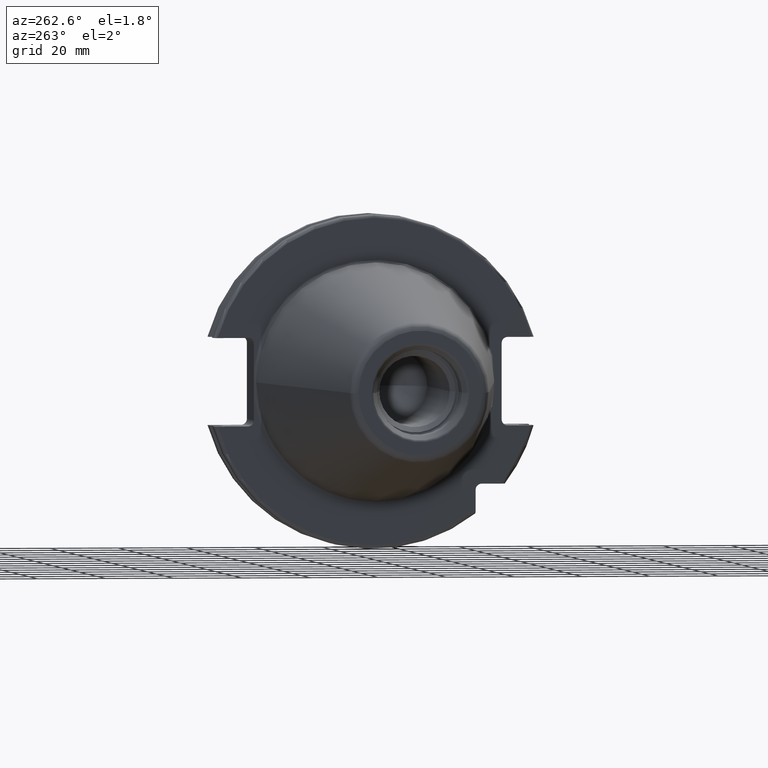
[diagram: clean part render]
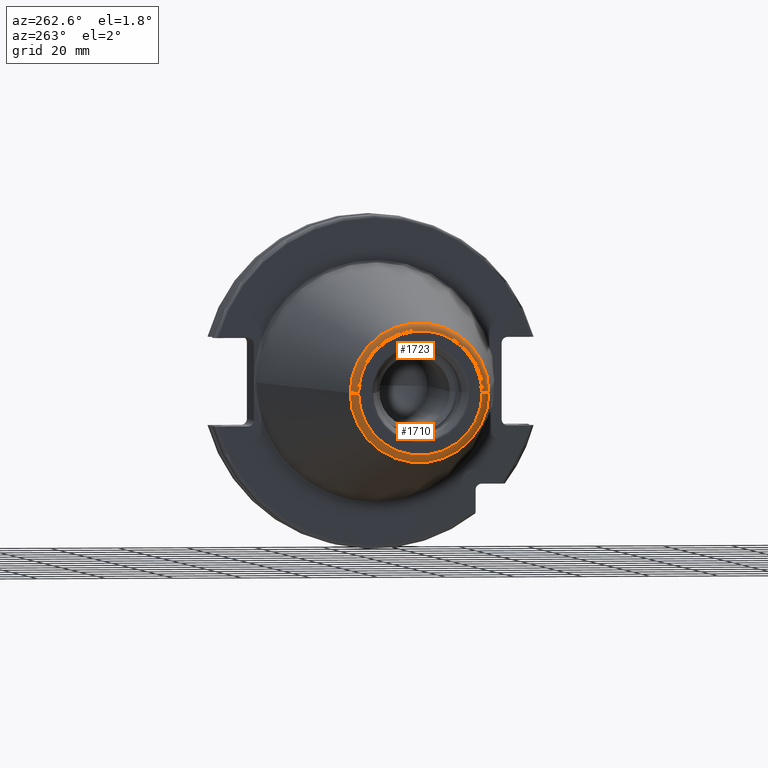
[diagram: same view with one multi-face feature highlighted, each face labeled with its STEP entity id]
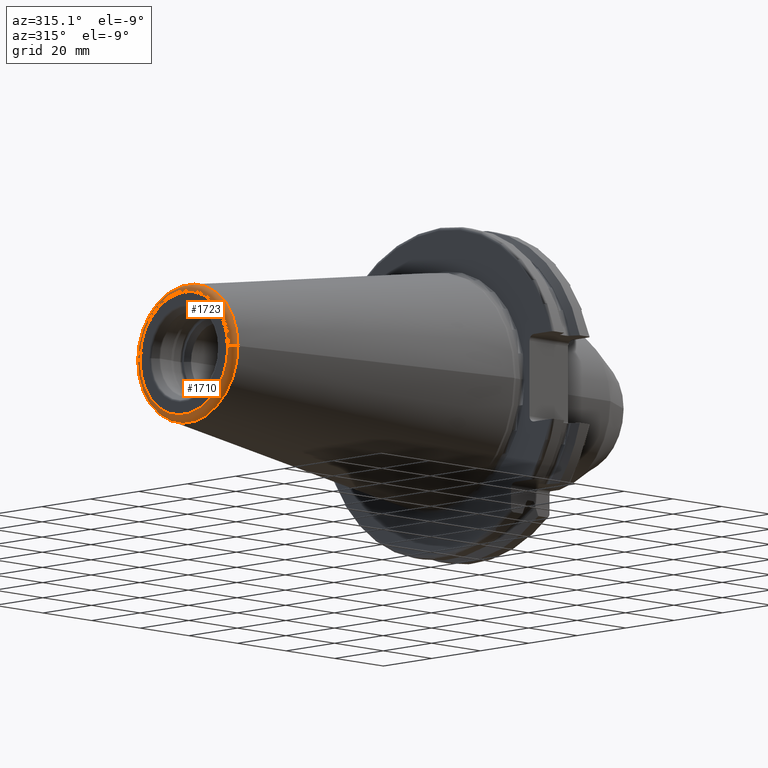
[diagram: same view with one multi-face feature highlighted, each face labeled with its STEP entity id]
A machine part, auxiliary view. The highlighted faces form ONE feature: a constant-radius fillet chain: 2 tangent blend faces with common blend radius 2.25 mm. The faces share edges in the B-rep.
A second angle (auxiliary view) of the same feature is appended — it is thin or edge-on in the first view.
Their STEP definitions:
[1] entity #1710 (Torus):
#2=CARTESIAN_POINT('',(-1.016E2,0.E0,0.E0));
#3=DIRECTION('',(-1.E0,0.E0,0.E0));
#4=DIRECTION('',(0.E0,1.E0,0.E0));
#5=AXIS2_PLACEMENT_3D('',#2,#3,#4);
#22=CARTESIAN_POINT('',(-9.935E1,1.816144700117E1,0.E0));
#23=DIRECTION('',(0.E0,0.E0,1.E0));
#24=DIRECTION('',(-1.443186691705E-1,9.895312636440E-1,0.E0));
#25=AXIS2_PLACEMENT_3D('',#22,#23,#24);
#27=CARTESIAN_POINT('',(-9.935E1,-1.816144700117E1,0.E0));
#28=DIRECTION('',(0.E0,0.E0,-1.E0));
#29=DIRECTION('',(-1.443186691705E-1,-9.895312636440E-1,0.E0));
#30=AXIS2_PLACEMENT_3D('',#27,#28,#29);
#32=CARTESIAN_POINT('',(-9.967471700563E1,0.E0,0.E0));
#33=DIRECTION('',(-1.E0,0.E0,0.E0));
#34=DIRECTION('',(0.E0,1.E0,0.E0));
#35=AXIS2_PLACEMENT_3D('',#32,#33,#34);
#1406=CARTESIAN_POINT('',(-9.967471700563E1,2.038789234437E1,0.E0));
#1407=CARTESIAN_POINT('',(-1.016E2,1.816144700117E1,0.E0));
#1408=VERTEX_POINT('',#1406);
#1409=VERTEX_POINT('',#1407);
#1410=CARTESIAN_POINT('',(-9.967471700563E1,-2.038789234437E1,0.E0));
#1411=CARTESIAN_POINT('',(-1.016E2,-1.816144700117E1,0.E0));
#1412=VERTEX_POINT('',#1410);
#1413=VERTEX_POINT('',#1411);
#1696=CARTESIAN_POINT('',(-9.935E1,0.E0,0.E0));
#1697=DIRECTION('',(1.E0,0.E0,0.E0));
#1698=DIRECTION('',(0.E0,-1.E0,0.E0));
#1699=AXIS2_PLACEMENT_3D('',#1696,#1697,#1698);
#1700=TOROIDAL_SURFACE('',#1699,1.816144700117E1,2.25E0);
#1702=ORIENTED_EDGE('',*,*,#1701,.T.);
#1703=ORIENTED_EDGE('',*,*,#1683,.T.);
#1705=ORIENTED_EDGE('',*,*,#1704,.F.);
#1707=ORIENTED_EDGE('',*,*,#1706,.F.);
#1708=EDGE_LOOP('',(#1702,#1703,#1705,#1707));
#1709=FACE_OUTER_BOUND('',#1708,.F.);
#1710=ADVANCED_FACE('',(#1709),#1700,.T.);
#6=CIRCLE('',#5,1.816144700117E1);
#26=CIRCLE('',#25,2.25E0);
#31=CIRCLE('',#30,2.25E0);
#36=CIRCLE('',#35,2.038789234437E1);
#1683=EDGE_CURVE('',#1409,#1413,#6,.T.);
#1701=EDGE_CURVE('',#1408,#1409,#26,.T.);
#1704=EDGE_CURVE('',#1412,#1413,#31,.T.);
#1706=EDGE_CURVE('',#1408,#1412,#36,.T.);
[2] entity #1723 (Torus):
#7=CARTESIAN_POINT('',(-1.016E2,0.E0,0.E0));
#8=DIRECTION('',(1.E0,0.E0,0.E0));
#9=DIRECTION('',(0.E0,1.E0,0.E0));
#10=AXIS2_PLACEMENT_3D('',#7,#8,#9);
#22=CARTESIAN_POINT('',(-9.935E1,1.816144700117E1,0.E0));
#23=DIRECTION('',(0.E0,0.E0,1.E0));
#24=DIRECTION('',(-1.443186691705E-1,9.895312636440E-1,0.E0));
#25=AXIS2_PLACEMENT_3D('',#22,#23,#24);
#27=CARTESIAN_POINT('',(-9.935E1,-1.816144700117E1,0.E0));
#28=DIRECTION('',(0.E0,0.E0,-1.E0));
#29=DIRECTION('',(-1.443186691705E-1,-9.895312636440E-1,0.E0));
#30=AXIS2_PLACEMENT_3D('',#27,#28,#29);
#37=CARTESIAN_POINT('',(-9.967471700563E1,0.E0,0.E0));
#38=DIRECTION('',(1.E0,0.E0,0.E0));
#39=DIRECTION('',(0.E0,1.E0,0.E0));
#40=AXIS2_PLACEMENT_3D('',#37,#38,#39);
#1406=CARTESIAN_POINT('',(-9.967471700563E1,2.038789234437E1,0.E0));
#1407=CARTESIAN_POINT('',(-1.016E2,1.816144700117E1,0.E0));
#1408=VERTEX_POINT('',#1406);
#1409=VERTEX_POINT('',#1407);
#1410=CARTESIAN_POINT('',(-9.967471700563E1,-2.038789234437E1,0.E0));
#1411=CARTESIAN_POINT('',(-1.016E2,-1.816144700117E1,0.E0));
#1412=VERTEX_POINT('',#1410);
#1413=VERTEX_POINT('',#1411);
#1711=CARTESIAN_POINT('',(-9.935E1,0.E0,0.E0));
#1712=DIRECTION('',(1.E0,0.E0,0.E0));
#1713=DIRECTION('',(0.E0,-1.E0,0.E0));
#1714=AXIS2_PLACEMENT_3D('',#1711,#1712,#1713);
#1715=TOROIDAL_SURFACE('',#1714,1.816144700117E1,2.25E0);
#1716=ORIENTED_EDGE('',*,*,#1701,.F.);
#1718=ORIENTED_EDGE('',*,*,#1717,.T.);
#1719=ORIENTED_EDGE('',*,*,#1704,.T.);
#1720=ORIENTED_EDGE('',*,*,#1685,.F.);
#1721=EDGE_LOOP('',(#1716,#1718,#1719,#1720));
#1722=FACE_OUTER_BOUND('',#1721,.F.);
#1723=ADVANCED_FACE('',(#1722),#1715,.T.);
#11=CIRCLE('',#10,1.816144700117E1);
#26=CIRCLE('',#25,2.25E0);
#31=CIRCLE('',#30,2.25E0);
#41=CIRCLE('',#40,2.038789234437E1);
#1685=EDGE_CURVE('',#1409,#1413,#11,.T.);
#1701=EDGE_CURVE('',#1408,#1409,#26,.T.);
#1704=EDGE_CURVE('',#1412,#1413,#31,.T.);
#1717=EDGE_CURVE('',#1408,#1412,#41,.T.);